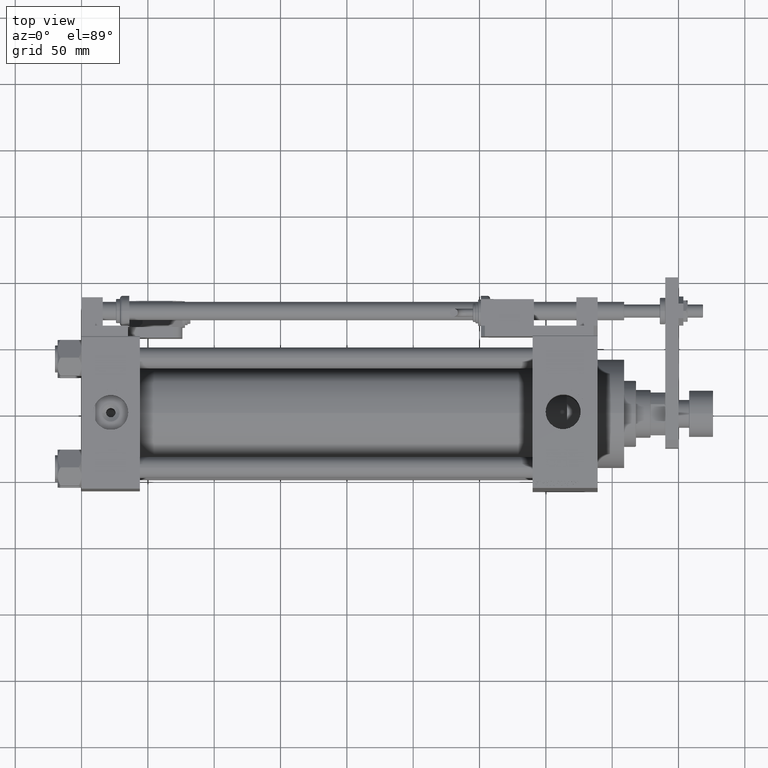
[diagram: clean part render]
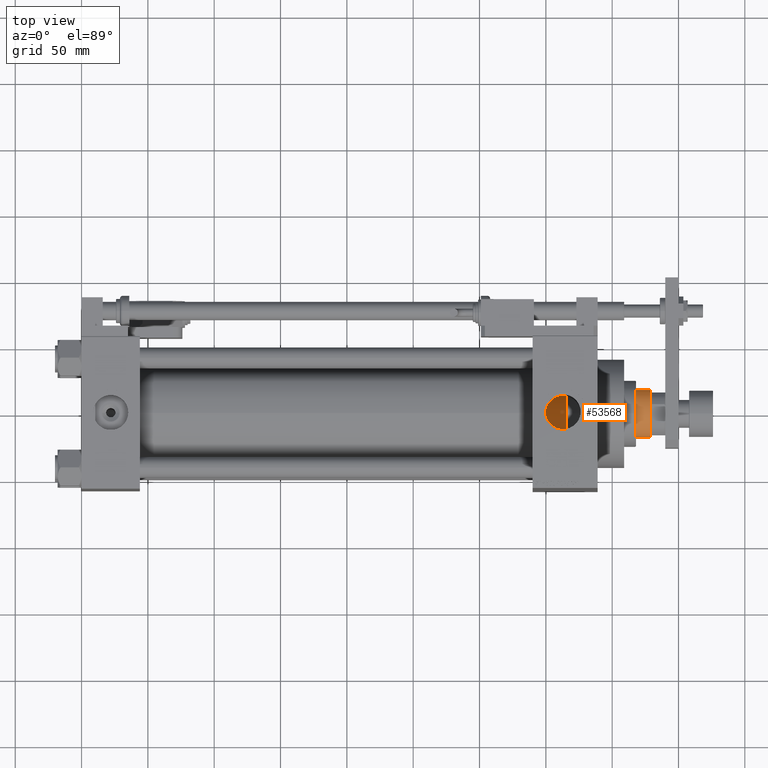
[diagram: same view with one face highlighted and labeled with its STEP entity id]
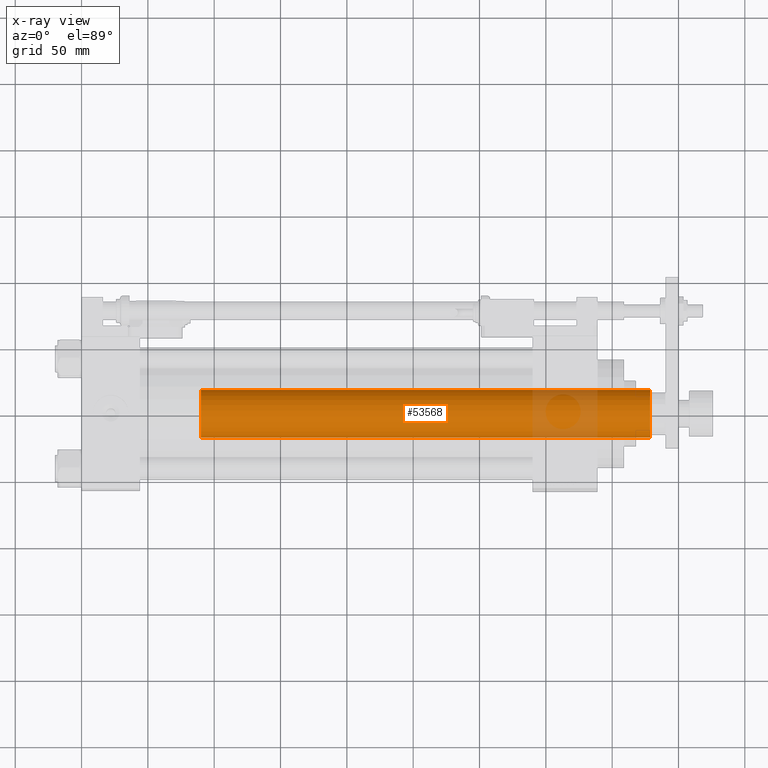
[diagram: x-ray of the same camera — body ghosted, the highlighted face saturated]
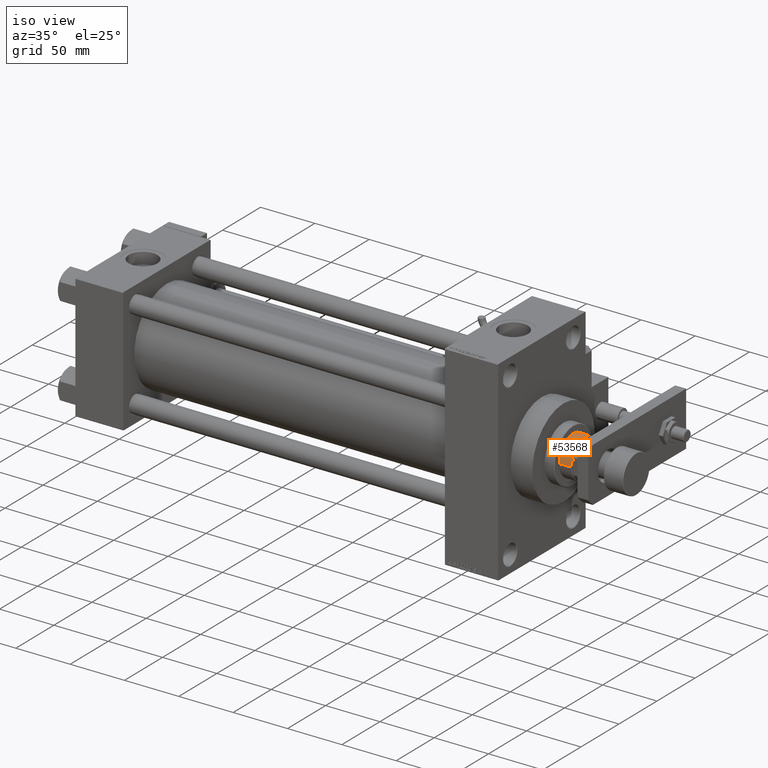
[diagram: same view with one face highlighted and labeled with its STEP entity id]
A machine part, top view. The second image highlights one B-rep face of the part: STEP entity #53568.
The next image is the same camera in x-ray: the body ghosted, the highlighted face saturated — about 10% of this face is hidden behind the body in this view.
A second angle (iso view) of the same face is appended — the face is thin or edge-on in the first view.
In plain terms, the highlighted cylindrical surface (edge-blend (fillet) strip) has radius 18 mm, axis along (-1, 0, 0).
Its self-contained STEP definition (entity closure, byte-faithful):
#372 = CARTESIAN_POINT ( 'NONE',  ( 0.000000000000000000, 0.000000000000000000, 46.00000000000000000 ) ) ;
#1021 = VECTOR ( 'NONE', #27512, 1000.000000000000000 ) ;
#1264 = LINE ( 'NONE', #5623, #6405 ) ;
#1357 = VERTEX_POINT ( 'NONE', #40663 ) ;
#1862 = EDGE_CURVE ( 'NONE', #34642, #1357, #49770, .T. ) ;
#2703 = CARTESIAN_POINT ( 'NONE',  ( -18.00000000000000000, 0.000000000000000000, 385.0000000000000000 ) ) ;
#5623 = CARTESIAN_POINT ( 'NONE',  ( 18.00000000000000000, 2.204364238465235428E-15, 385.0000000000000000 ) ) ;
#6226 = ORIENTED_EDGE ( 'NONE', *, *, #1862, .T. ) ;
#6405 = VECTOR ( 'NONE', #38829, 1000.000000000000000 ) ;
#6940 = CARTESIAN_POINT ( 'NONE',  ( -18.00000000000000000, 0.000000000000000000, 46.00000000000000000 ) ) ;
#9016 = DIRECTION ( 'NONE',  ( 1.000000000000000000, 0.000000000000000000, 0.000000000000000000 ) ) ;
#9552 = CARTESIAN_POINT ( 'NONE',  ( 0.000000000000000000, 0.000000000000000000, 384.5000000000000568 ) ) ;
#10796 = CARTESIAN_POINT ( 'NONE',  ( -18.00000000000000000, 0.000000000000000000, 384.5000000000000568 ) ) ;
#10913 = LINE ( 'NONE', #2703, #1021 ) ;
#12878 = CARTESIAN_POINT ( 'NONE',  ( 18.00000000000000000, 2.204364238465235428E-15, 384.5000000000000568 ) ) ;
#13243 = ORIENTED_EDGE ( 'NONE', *, *, #23341, .T. ) ;
#13365 = DIRECTION ( 'NONE',  ( 0.000000000000000000, 0.000000000000000000, -1.000000000000000000 ) ) ;
#13907 = CIRCLE ( 'NONE', #31176, 18.00000000000000000 ) ;
#17551 = DIRECTION ( 'NONE',  ( 0.000000000000000000, 0.000000000000000000, 1.000000000000000000 ) ) ;
#17657 = AXIS2_PLACEMENT_3D ( 'NONE', #372, #17551, #25734 ) ;
#17829 = CARTESIAN_POINT ( 'NONE',  ( 0.000000000000000000, 0.000000000000000000, 385.0000000000000000 ) ) ;
#18226 = ORIENTED_EDGE ( 'NONE', *, *, #43425, .F. ) ;
#20528 = VERTEX_POINT ( 'NONE', #10796 ) ;
#23341 = EDGE_CURVE ( 'NONE', #20528, #34642, #10913, .T. ) ;
#23969 = VERTEX_POINT ( 'NONE', #12878 ) ;
#25734 = DIRECTION ( 'NONE',  ( 1.000000000000000000, 0.000000000000000000, 0.000000000000000000 ) ) ;
#25998 = FACE_OUTER_BOUND ( 'NONE', #50167, .T. ) ;
#26261 = CYLINDRICAL_SURFACE ( 'NONE', #32793, 18.00000000000000000 ) ;
#27512 = DIRECTION ( 'NONE',  ( -0.000000000000000000, -0.000000000000000000, -1.000000000000000000 ) ) ;
#31176 = AXIS2_PLACEMENT_3D ( 'NONE', #9552, #13365, #9016 ) ;
#31677 = EDGE_CURVE ( 'NONE', #23969, #20528, #13907, .T. ) ;
#32793 = AXIS2_PLACEMENT_3D ( 'NONE', #17829, #50743, #38231 ) ;
#34642 = VERTEX_POINT ( 'NONE', #6940 ) ;
#38231 = DIRECTION ( 'NONE',  ( -1.000000000000000000, 0.000000000000000000, 0.000000000000000000 ) ) ;
#38829 = DIRECTION ( 'NONE',  ( -0.000000000000000000, -0.000000000000000000, -1.000000000000000000 ) ) ;
#40663 = CARTESIAN_POINT ( 'NONE',  ( 18.00000000000000000, 2.204364238465235428E-15, 46.00000000000000000 ) ) ;
#43425 = EDGE_CURVE ( 'NONE', #23969, #1357, #1264, .T. ) ;
#49770 = CIRCLE ( 'NONE', #17657, 18.00000000000000000 ) ;
#50167 = EDGE_LOOP ( 'NONE', ( #18226, #53442, #13243, #6226 ) ) ;
#50743 = DIRECTION ( 'NONE',  ( -0.000000000000000000, -0.000000000000000000, -1.000000000000000000 ) ) ;
#53442 = ORIENTED_EDGE ( 'NONE', *, *, #31677, .T. ) ;
#53568 = ADVANCED_FACE ( 'NONE', ( #25998 ), #26261, .T. ) ;